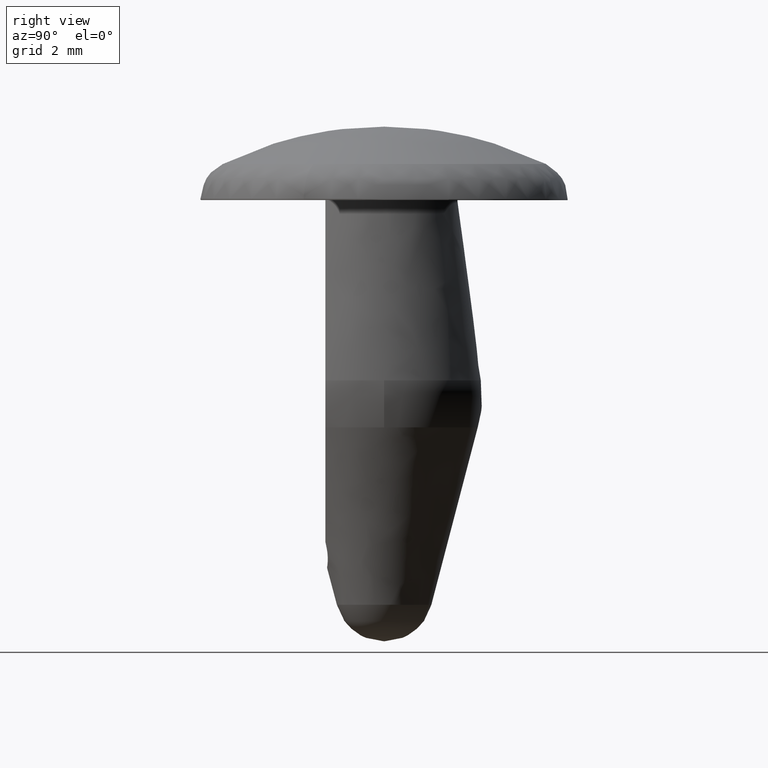
[diagram: clean part render]
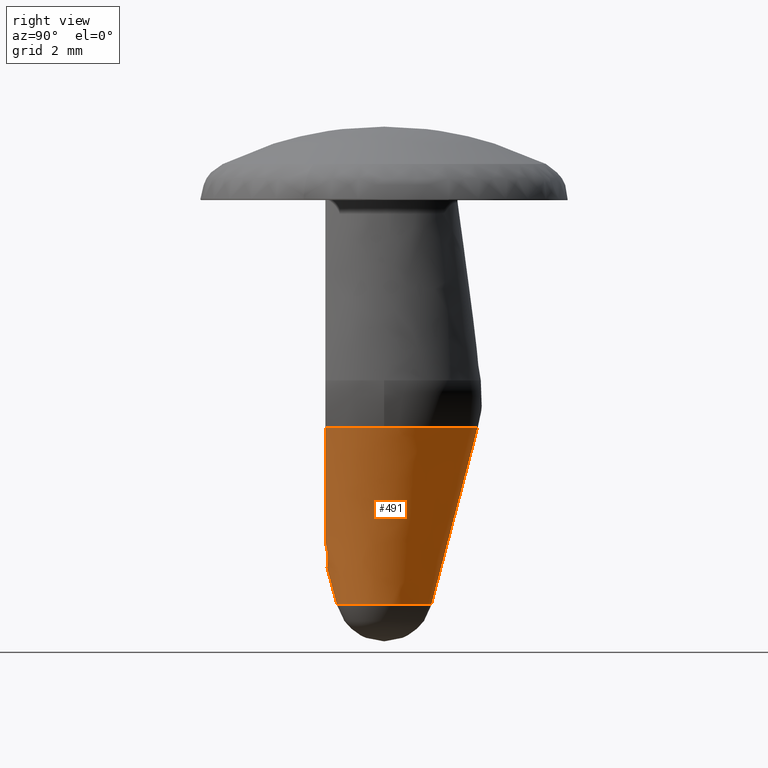
[diagram: same view with one face highlighted and labeled with its STEP entity id]
A machine part, right view. The second image highlights one B-rep face of the part: STEP entity #491.
In plain terms, the highlighted face is a freeform B-spline surface patch.
Its self-contained STEP definition (entity closure, byte-faithful):
#260=CARTESIAN_POINT('',(-0.911528233985496,0.243176951542734,-8.344574017766114));
#261=CARTESIAN_POINT('',(-0.955917012466961,0.076789369984153,-8.344574017766114));
#262=CARTESIAN_POINT('',(-0.938658069419487,-0.094550408925691,-8.344574017766114));
#263=CARTESIAN_POINT('',(-0.844107660493796,-1.033208478345178,-8.344574017766115));
#264=CARTESIAN_POINT('',(0.094550408925691,-0.938658069419487,-8.344574017766114));
#265=CARTESIAN_POINT('',(1.033208478345178,-0.844107660493796,-8.344574017766115));
#266=CARTESIAN_POINT('',(0.938658069419487,0.094550408925691,-8.344574017766114));
#267=CARTESIAN_POINT('',(0.844107660493796,1.033208478345178,-8.344574017766115));
#268=CARTESIAN_POINT('',(-0.094550408925691,0.938658069419487,-8.344574017766114));
#269=CARTESIAN_POINT('',(-1.876671869120881,0.500657387411307,-4.542523177169967));
#270=CARTESIAN_POINT('',(-1.968060340453882,0.158095432619445,-4.542523177169966));
#271=CARTESIAN_POINT('',(-1.932527296385310,-0.194662201376795,-4.542523177169967));
#272=CARTESIAN_POINT('',(-1.737865095008514,-2.127189497762105,-4.542523177169966));
#273=CARTESIAN_POINT('',(0.194662201376795,-1.932527296385310,-4.542523177169967));
#274=CARTESIAN_POINT('',(2.127189497762105,-1.737865095008514,-4.542523177169966));
#275=CARTESIAN_POINT('',(1.932527296385310,0.194662201376795,-4.542523177169967));
#276=CARTESIAN_POINT('',(1.737865095008514,2.127189497762105,-4.542523177169966));
#277=CARTESIAN_POINT('',(-0.194662201376795,1.932527296385310,-4.542523177169967));
#285=(BOUNDED_SURFACE()B_SPLINE_SURFACE(2,1,((#260,#269),(#261,#270),(#262,#271),(#263,#272),(#264,#273),(#265,#274),(#266,#275),(#267,#276),(#268,#277)),.UNSPECIFIED.,.F.,.F.,.U.)B_SPLINE_SURFACE_WITH_KNOTS((3,2,2,2,3),(2,2),(0.0,0.772348566580288,3.990467593998152,7.208586621416016,10.426705648833879),(0.0,3.931079877816691),.UNSPECIFIED.)GEOMETRIC_REPRESENTATION_ITEM()RATIONAL_B_SPLINE_SURFACE(((0.893152553776853,0.893152553776853),(0.929705627484771,0.929705627484771),(1.0,1.0),(0.707106781186548,0.707106781186548),(1.0,1.0),(0.707106781186548,0.707106781186548),(1.0,1.0),(0.707106781186548,0.707106781186548),(1.0,1.0)))REPRESENTATION_ITEM('')SURFACE());
#286=CARTESIAN_POINT('',(-1.496163553573590,-1.199999999999986,-4.635257124094320));
#287=VERTEX_POINT('',#286);
#288=CARTESIAN_POINT('',(-1.853130891334652,0.494377845045473,-4.635258875572371));
#289=VERTEX_POINT('',#288);
#290=CARTESIAN_POINT('',(-1.496163553573590,-1.199999999999986,-4.635257124094320));
#291=CARTESIAN_POINT('',(-2.103232487399047,-0.443104465872611,-4.635258116353674));
#292=CARTESIAN_POINT('',(-1.853130891334651,0.494377845045473,-4.635258875572371));
#300=(BOUNDED_CURVE()B_SPLINE_CURVE(2,(#290,#291,#292),.UNSPECIFIED.,.F.,.U.)B_SPLINE_CURVE_WITH_KNOTS((3,3),(0.0,0.206598656610425),.UNSPECIFIED.)CURVE()GEOMETRIC_REPRESENTATION_ITEM()RATIONAL_B_SPLINE_CURVE((1.0,0.834154077139532,0.873889423482797))REPRESENTATION_ITEM(''));
#301=EDGE_CURVE('',#287,#289,#300,.T.);
#302=ORIENTED_EDGE('',*,*,#301,.T.);
#303=CARTESIAN_POINT('',(-0.934494194395612,0.249302993966423,-8.254103557315123));
#304=VERTEX_POINT('',#303);
#305=CARTESIAN_POINT('',(-0.934494194395612,0.249302993966423,-8.254103557315123));
#306=CARTESIAN_POINT('',(-1.853130891334652,0.494377845045473,-4.635258875572371));
#307=QUASI_UNIFORM_CURVE('',1,(#305,#306),.UNSPECIFIED.,.F.,.U.);
#308=EDGE_CURVE('',#304,#289,#307,.T.);
#309=ORIENTED_EDGE('',*,*,#308,.F.);
#310=CARTESIAN_POINT('',(-0.967177202898201,0.0,-8.254102849637711));
#311=VERTEX_POINT('',#310);
#312=CARTESIAN_POINT('',(-0.967177202898201,0.0,-8.254102849637711));
#313=CARTESIAN_POINT('',(-0.967177202898201,0.126793827943123,-8.254102849637711));
#314=CARTESIAN_POINT('',(-0.934494194395612,0.249302993966423,-8.254103557315123));
#322=(BOUNDED_CURVE()B_SPLINE_CURVE(2,(#312,#313,#314),.UNSPECIFIED.,.F.,.U.)B_SPLINE_CURVE_WITH_KNOTS((3,3),(0.0,0.043962462404310),.UNSPECIFIED.)CURVE()GEOMETRIC_REPRESENTATION_ITEM()RATIONAL_B_SPLINE_CURVE((1.0,0.948494771517745,0.915103916401702))REPRESENTATION_ITEM(''));
#323=EDGE_CURVE('',#311,#304,#322,.T.);
#324=ORIENTED_EDGE('',*,*,#323,.F.);
#325=CARTESIAN_POINT('',(0.967177202898201,0.0,-8.254102849637711));
#326=VERTEX_POINT('',#325);
#327=CARTESIAN_POINT('',(0.967177202898201,0.0,-8.254102849637711));
#328=CARTESIAN_POINT('',(0.967177202898201,-0.967177202898201,-8.254102849637711));
#329=CARTESIAN_POINT('',(0.0,-0.967177202898201,-8.254102849637711));
#330=CARTESIAN_POINT('',(-0.967177202898201,-0.967177202898201,-8.254102849637711));
#331=CARTESIAN_POINT('',(-0.967177202898201,0.0,-8.254102849637711));
#339=(BOUNDED_CURVE()B_SPLINE_CURVE(2,(#327,#328,#329,#330,#331),.UNSPECIFIED.,.F.,.U.)B_SPLINE_CURVE_WITH_KNOTS((3,2,3),(0.500000000000000,0.750000000000000,1.0),.UNSPECIFIED.)CURVE()GEOMETRIC_REPRESENTATION_ITEM()RATIONAL_B_SPLINE_CURVE((1.0,0.707106781186547,1.0,0.707106781186547,1.0))REPRESENTATION_ITEM(''));
#340=EDGE_CURVE('',#326,#311,#339,.T.);
#341=ORIENTED_EDGE('',*,*,#340,.F.);
#342=CARTESIAN_POINT('',(-0.096932605070377,0.962307545372765,-8.254102849635547));
#343=VERTEX_POINT('',#342);
#344=CARTESIAN_POINT('',(-0.096932605070377,0.962307545372765,-8.254102849635547));
#345=CARTESIAN_POINT('',(-0.048588622396614,0.967177202898201,-8.254102849637711));
#346=CARTESIAN_POINT('',(0.0,0.967177202898201,-8.254102849637711));
#347=CARTESIAN_POINT('',(0.967177202898201,0.967177202898201,-8.254102849637711));
#348=CARTESIAN_POINT('',(0.967177202898201,0.0,-8.254102849637711));
#356=(BOUNDED_CURVE()B_SPLINE_CURVE(2,(#344,#345,#346,#347,#348),.UNSPECIFIED.,.F.,.U.)B_SPLINE_CURVE_WITH_KNOTS((3,2,3),(0.232600409897105,0.250000000000000,0.500000000000000),.UNSPECIFIED.)CURVE()GEOMETRIC_REPRESENTATION_ITEM()RATIONAL_B_SPLINE_CURVE((0.962067733926643,0.979615112194914,1.0,0.707106781186547,1.0))REPRESENTATION_ITEM(''));
#357=EDGE_CURVE('',#343,#326,#356,.T.);
#358=ORIENTED_EDGE('',*,*,#357,.F.);
#359=CARTESIAN_POINT('',(-0.192220907132986,1.908285629261297,-4.635259230446605));
#360=VERTEX_POINT('',#359);
#361=CARTESIAN_POINT('',(-0.096932605070377,0.962307545372765,-8.254102849635547));
#362=CARTESIAN_POINT('',(-0.192220907132986,1.908285629261297,-4.635259230446605));
#363=QUASI_UNIFORM_CURVE('',1,(#361,#362),.UNSPECIFIED.,.F.,.U.);
#364=EDGE_CURVE('',#343,#360,#363,.T.);
#365=ORIENTED_EDGE('',*,*,#364,.T.);
#366=CARTESIAN_POINT('',(1.917943262344400,-0.000000111524127,-4.635256153124296));
#367=VERTEX_POINT('',#366);
#368=CARTESIAN_POINT('',(-0.192220907132986,1.908285629261297,-4.635259230446605));
#369=CARTESIAN_POINT('',(0.670655794026616,1.995203075432844,-4.635258449610775));
#370=CARTESIAN_POINT('',(1.305840773213348,1.404736673732055,-4.635257514462345));
#371=CARTESIAN_POINT('',(1.917943342818645,0.835727623471763,-4.635256613296896));
#372=CARTESIAN_POINT('',(1.917943262344400,-0.000000111524127,-4.635256153124296));
#380=(BOUNDED_CURVE()B_SPLINE_CURVE(2,(#368,#369,#370,#371,#372),.UNSPECIFIED.,.F.,.U.)B_SPLINE_CURVE_WITH_KNOTS((3,2,3),(0.478695209469498,0.666666666666667,0.848806047577946),.UNSPECIFIED.)CURVE()GEOMETRIC_REPRESENTATION_ITEM()RATIONAL_B_SPLINE_CURVE((0.868395425824294,0.849106957897236,1.0,0.853788624708119,0.867362345683337))REPRESENTATION_ITEM(''));
#381=EDGE_CURVE('',#360,#367,#380,.T.);
#382=ORIENTED_EDGE('',*,*,#381,.T.);
#383=CARTESIAN_POINT('',(1.496163553573590,-1.199999999999986,-4.635257124094320));
#384=VERTEX_POINT('',#383);
#385=CARTESIAN_POINT('',(1.917943262344400,-0.000000111524127,-4.635256153124296));
#386=CARTESIAN_POINT('',(1.917943095596143,-0.674124177014775,-4.635256638609309));
#387=CARTESIAN_POINT('',(1.496163553573590,-1.199999999999986,-4.635257124094320));
#395=(BOUNDED_CURVE()B_SPLINE_CURVE(2,(#385,#386,#387),.UNSPECIFIED.,.F.,.U.)B_SPLINE_CURVE_WITH_KNOTS((3,3),(0.848806047577946,1.0),.UNSPECIFIED.)CURVE()GEOMETRIC_REPRESENTATION_ITEM()RATIONAL_B_SPLINE_CURVE((0.867362345683337,0.878629895364518,1.0))REPRESENTATION_ITEM(''));
#396=EDGE_CURVE('',#367,#384,#395,.T.);
#397=ORIENTED_EDGE('',*,*,#396,.T.);
#398=CARTESIAN_POINT('',(0.512706496416740,-1.199999999999986,-6.968496213359470));
#399=VERTEX_POINT('',#398);
#400=CARTESIAN_POINT('',(0.512706496416740,-1.199999999999986,-6.968496213359470));
#401=CARTESIAN_POINT('',(0.539548939427265,-1.199999999999986,-6.928366879778555));
#402=CARTESIAN_POINT('',(0.565221456946601,-1.199999999999986,-6.887310175369218));
#403=CARTESIAN_POINT('',(0.658487091444489,-1.199999999999986,-6.730688227418390));
#404=CARTESIAN_POINT('',(0.719753472279937,-1.199999999999986,-6.612521501663601));
#405=CARTESIAN_POINT('',(0.835361899258448,-1.199999999999986,-6.373237478768622));
#406=CARTESIAN_POINT('',(0.889509646669514,-1.199999999999986,-6.252037387785509));
#407=CARTESIAN_POINT('',(1.045448630968061,-1.199999999999986,-5.885665544974547));
#408=CARTESIAN_POINT('',(1.140882708428846,-1.199999999999986,-5.637784904346526));
#409=CARTESIAN_POINT('',(1.323905719919771,-1.199999999999986,-5.138680680158177));
#410=CARTESIAN_POINT('',(1.411285388156757,-1.199999999999986,-4.887275509577714));
#411=CARTESIAN_POINT('',(1.496163553573590,-1.199999999999986,-4.635257124094320));
#412=B_SPLINE_CURVE_WITH_KNOTS('',3,(#400,#401,#402,#403,#404,#405,#406,#407,#408,#409,#410,#411),.UNSPECIFIED.,.F.,.U.,(4,2,2,2,2,4),(0.602434054630709,0.625000000000000,0.687499999999999,0.749999999999999,0.875000000000000,1.0),.UNSPECIFIED.);
#413=EDGE_CURVE('',#399,#384,#412,.T.);
#414=ORIENTED_EDGE('',*,*,#413,.F.);
#415=CARTESIAN_POINT('',(0.492802392197806,-1.175320674523856,-7.084532847131261));
#416=VERTEX_POINT('',#415);
#417=CARTESIAN_POINT('',(0.512706496416740,-1.199999999999986,-6.968496213359470));
#418=CARTESIAN_POINT('',(0.506071317132453,-1.191783704903280,-7.007177165985229));
#419=CARTESIAN_POINT('',(0.499436487418532,-1.183557526478118,-7.045856080728409));
#420=CARTESIAN_POINT('',(0.492802392197806,-1.175320674523856,-7.084532847131261));
#421=B_SPLINE_CURVE_WITH_KNOTS('',3,(#417,#418,#419,#420),.UNSPECIFIED.,.F.,.U.,(4,4),(0.000000976039388,0.000121266283579),.UNSPECIFIED.);
#422=EDGE_CURVE('',#399,#416,#421,.T.);
#423=ORIENTED_EDGE('',*,*,#422,.T.);
#424=CARTESIAN_POINT('',(-0.492805000000000,-1.175319537540008,-7.084533000000000));
#425=VERTEX_POINT('',#424);
#426=CARTESIAN_POINT('',(0.492802392197806,-1.175320674523856,-7.084532847131261));
#427=CARTESIAN_POINT('',(0.487914217918405,-1.169251953640152,-7.113029435041780));
#428=CARTESIAN_POINT('',(0.480609830019476,-1.164382714923051,-7.140884199104532));
#429=CARTESIAN_POINT('',(0.461190862643049,-1.156836850075034,-7.195287250771619));
#430=CARTESIAN_POINT('',(0.448942485677384,-1.154148871721679,-7.222061662798796));
#431=CARTESIAN_POINT('',(0.419889532447054,-1.150785545151747,-7.273044803293007));
#432=CARTESIAN_POINT('',(0.403286155056236,-1.150102973981386,-7.297004417941547));
#433=CARTESIAN_POINT('',(0.365998331063620,-1.150135553785189,-7.341901332657541));
#434=CARTESIAN_POINT('',(0.345082728490972,-1.150867014579845,-7.363006132902763));
#435=CARTESIAN_POINT('',(0.300395699089639,-1.153082502925338,-7.400771680155127));
#436=CARTESIAN_POINT('',(0.276601394303101,-1.154554580905109,-7.417545808137469));
#437=CARTESIAN_POINT('',(0.226102969983249,-1.157638115765746,-7.446911948125763));
#438=CARTESIAN_POINT('',(0.199223818825233,-1.159256578070406,-7.459520986866301));
#439=CARTESIAN_POINT('',(0.144468834231024,-1.162041227317278,-7.479560715139928));
#440=CARTESIAN_POINT('',(0.116382700811088,-1.163223295349336,-7.487145869476676));
#441=CARTESIAN_POINT('',(0.058765836837351,-1.164857389451741,-7.497395936309064));
#442=CARTESIAN_POINT('',(0.029169633599838,-1.165299137604348,-7.499999209920109));
#443=CARTESIAN_POINT('',(-0.029141890314244,-1.165299364046444,-7.500000991166479));
#444=CARTESIAN_POINT('',(-0.058151246051658,-1.164869725498987,-7.497471291225062));
#445=CARTESIAN_POINT('',(-0.115873463744196,-1.163242477434767,-7.487270772411615));
#446=CARTESIAN_POINT('',(-0.144474691830313,-1.162040530293460,-7.479557386542203));
#447=CARTESIAN_POINT('',(-0.199156704356411,-1.159259854527369,-7.459548775428335));
#448=CARTESIAN_POINT('',(-0.225527191406230,-1.157672722167791,-7.447213453644058));
#449=CARTESIAN_POINT('',(-0.276300434078770,-1.154572655887380,-7.417756775784318));
#450=CARTESIAN_POINT('',(-0.300393770728792,-1.153083091794362,-7.400763600048089));
#451=CARTESIAN_POINT('',(-0.344849278817070,-1.150876856492725,-7.363217726445840));
#452=CARTESIAN_POINT('',(-0.365413133356729,-1.150145066363417,-7.342552856415042));
#453=CARTESIAN_POINT('',(-0.403102649147116,-1.150092548769704,-7.297283889855607));
#454=CARTESIAN_POINT('',(-0.419828184496801,-1.150788138957933,-7.273111177724878));
#455=CARTESIAN_POINT('',(-0.448622936874544,-1.154099705755678,-7.222672564449372));
#456=CARTESIAN_POINT('',(-0.460798476427795,-1.156713442819398,-7.196280105155565));
#457=CARTESIAN_POINT('',(-0.480572119171682,-1.164335461805389,-7.141108744884165));
#458=CARTESIAN_POINT('',(-0.487915439921192,-1.169249102632604,-7.113037682227805));
#459=CARTESIAN_POINT('',(-0.492805000000000,-1.175319537540008,-7.084533000000000));
#460=B_SPLINE_CURVE_WITH_KNOTS('',3,(#426,#427,#428,#429,#430,#431,#432,#433,#434,#435,#436,#437,#438,#439,#440,#441,#442,#443,#444,#445,#446,#447,#448,#449,#450,#451,#452,#453,#454,#455,#456,#457,#458,#459),.UNSPECIFIED.,.F.,.U.,(4,2,2,2,2,2,2,2,2,2,2,2,2,2,2,2,4),(0.0,0.062500000000000,0.125000000000000,0.187500000000000,0.250000000000000,0.312500000000000,0.375000000000000,0.437500000000000,0.500000000000000,0.562500000000000,0.625000000000000,0.687500000000000,0.750000000000000,0.812500000000000,0.875000000000000,0.937500000000000,0.999999812182480),.UNSPECIFIED.);
#461=EDGE_CURVE('',#416,#425,#460,.T.);
#462=ORIENTED_EDGE('',*,*,#461,.T.);
#463=CARTESIAN_POINT('',(-0.512710290466270,-1.199999999999986,-6.968490539491700));
#464=VERTEX_POINT('',#463);
#465=CARTESIAN_POINT('',(-0.492804999999988,-1.175319537540008,-7.084532999999997));
#466=CARTESIAN_POINT('',(-0.499439731400072,-1.183556662629999,-7.045854310142100));
#467=CARTESIAN_POINT('',(-0.506074836142310,-1.191783273171065,-7.007173443800403));
#468=CARTESIAN_POINT('',(-0.512710290466270,-1.199999999999986,-6.968490539491700));
#469=B_SPLINE_CURVE_WITH_KNOTS('',3,(#465,#466,#467,#468),.UNSPECIFIED.,.F.,.U.,(4,4),(0.000000207342945,0.000120503637387),.UNSPECIFIED.);
#470=EDGE_CURVE('',#425,#464,#469,.T.);
#471=ORIENTED_EDGE('',*,*,#470,.T.);
#472=CARTESIAN_POINT('',(-1.496163553573590,-1.199999999999986,-4.635257124094320));
#473=CARTESIAN_POINT('',(-1.410482267054769,-1.199999999999986,-4.889657451354077));
#474=CARTESIAN_POINT('',(-1.322328292036034,-1.199999999999986,-5.143234330391599));
#475=CARTESIAN_POINT('',(-1.183507218095741,-1.199999999999986,-5.521405027374281));
#476=CARTESIAN_POINT('',(-1.136117386075713,-1.199999999999985,-5.647090232125320));
#477=CARTESIAN_POINT('',(-1.038165091085933,-1.199999999999986,-5.897404100411047));
#478=CARTESIAN_POINT('',(-0.987587511923265,-1.199999999999986,-6.022116752943382));
#479=CARTESIAN_POINT('',(-0.881804439662478,-1.199999999999986,-6.269533393824061));
#480=CARTESIAN_POINT('',(-0.826670979424295,-1.199999999999986,-6.392213832692384));
#481=CARTESIAN_POINT('',(-0.708762062715680,-1.199999999999986,-6.634070993655889));
#482=CARTESIAN_POINT('',(-0.646116154428506,-1.199999999999986,-6.753397991140904));
#483=CARTESIAN_POINT('',(-0.555953217047125,-1.199999999999986,-6.902013199041508));
#484=CARTESIAN_POINT('',(-0.534760855019197,-1.199999999999986,-6.935521912456437));
#485=CARTESIAN_POINT('',(-0.512710290466270,-1.199999999999986,-6.968490539491700));
#486=B_SPLINE_CURVE_WITH_KNOTS('',3,(#472,#473,#474,#475,#476,#477,#478,#479,#480,#481,#482,#483,#484,#485),.UNSPECIFIED.,.F.,.U.,(4,2,2,2,2,2,4),(0.0,0.125000000000000,0.187500000000000,0.250000000000000,0.312500000000000,0.375000000000000,0.393470908991343),.UNSPECIFIED.);
#487=EDGE_CURVE('',#287,#464,#486,.T.);
#488=ORIENTED_EDGE('',*,*,#487,.F.);
#489=EDGE_LOOP('',(#302,#309,#324,#341,#358,#365,#382,#397,#414,#423,#462,#471,#488));
#490=FACE_OUTER_BOUND('',#489,.T.);
#491=ADVANCED_FACE('',(#490),#285,.T.);